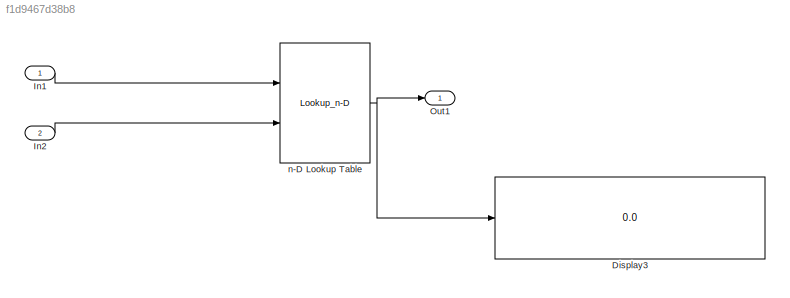
MODEL slx_f1d9467d38b8
KIND model
CONFIG AbsTol = auto
CONFIG EnableMultiTasking = on
CONFIG FixedStep = 0.200000
CONFIG MaxStep = auto
CONFIG MinStep = auto
CONFIG RelTol = 1e-3
CONFIG SampleTimeConstraint = Unconstrained
CONFIG Solver = FixedStepDiscrete
CONFIG SolverName = FixedStepDiscrete
CONFIG StartTime = 0.0
CONFIG StopTime = 10.0
WORKSPACE source: MAT-file member
WORKSPACE compositionalMap: struct (value not decoded)
BLOCK [Display] Display3
  Decimation = 1
  Ports = [1]
BLOCK [Inport] In1
  IconDisplay = Port number
BLOCK [Inport] In2
  IconDisplay = Port number
  Port = 2
BLOCK [Outport] Out1
  IconDisplay = Port number
BLOCK [Lookup_n-D] n-D Lookup Table
  BreakpointsForDimension1 = [1.2 2.3 3. 4.1 5.1 6.1 7.2 8.3 9.4 10.2 11.3]
  BreakpointsForDimension2 = [1. 2. 3.1 4.2 5. 6.13 7.12 8.13 9.24 10.24 11.13]
  BreakpointsForDimension3 = [5 6]
  InternalRulePriority = Speed
  Ports = [2, 1]
  RndMeth = Simplest
  Table = [1. 2.1 3.2 4.3 5.5 6.6 7.7 8.2 9.3 10.2 11.1; 1. 2.1 3.2 4.3 5.5 6.6 7.7 8.2 9.3 10.2 11.1; 1. 2.1 3.2 4.3 5.5 6.6 7.7 8.2 9.3 10.2 11.1;1. 2.1 3.2 4.3 5.5 6.6 7.7 8.2 9.3 10.2 11.1;1. 2.1 3.2 4.3 5.5 6.6 7.7 8.2 9.3 10.2 11.1;1. 2.1 3.2 4.3 5.5 6.6 7.7 8.2 9.3 10.2 11.1;1. 2.1 3.2 4.3 5.5 6.6 7.7 8.2 9.3 10.2 11.1;1. 2.1 3.2 4.3 5.5 6.6 7.7 8.2 9.3 10.2 11.1;1. 2.1 3.2 4.3 5.5 6.6 7.7 8.2 9.3 10...<+98ch>
LINE In1:1 -> n-D Lookup Table:1
LINE In2:1 -> n-D Lookup Table:2
NET n-D Lookup Table:1 -> Display3:1, Out1:1
note: NET lines group one-source signal fan-out (src -> all destinations, sorted); 1:1 wires keep LINE
